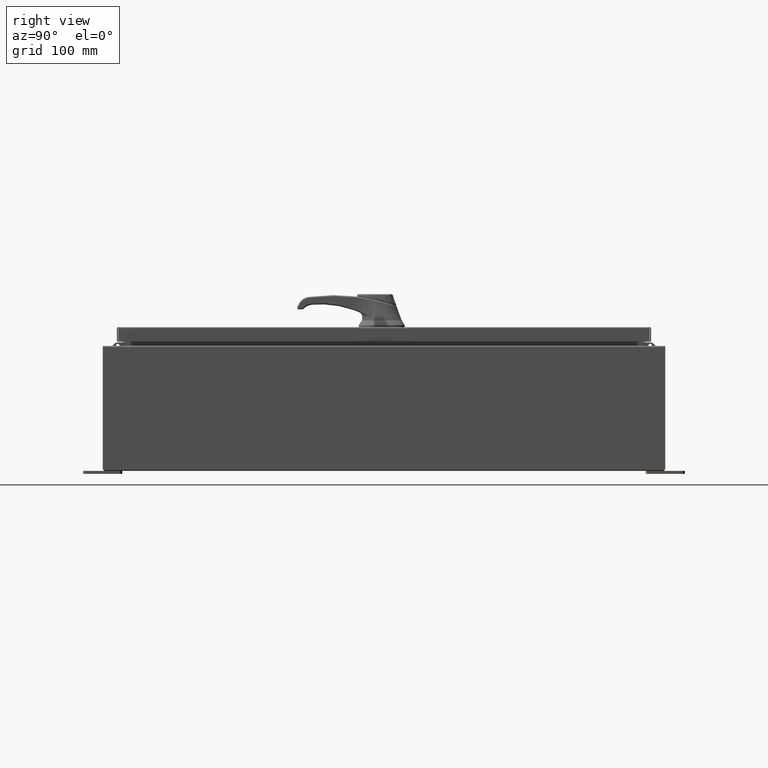
[diagram: clean part render]
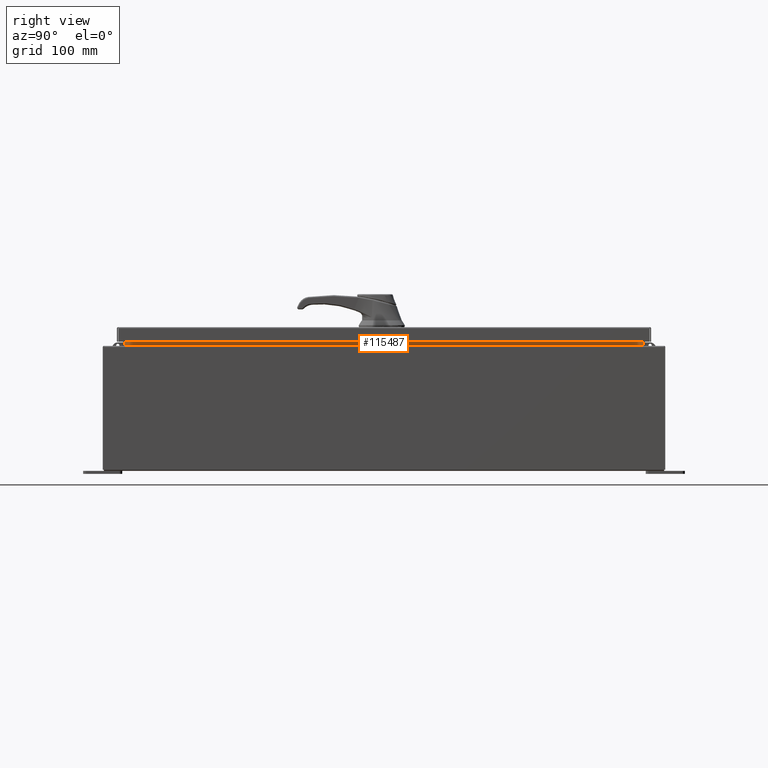
[diagram: same view with one face highlighted and labeled with its STEP entity id]
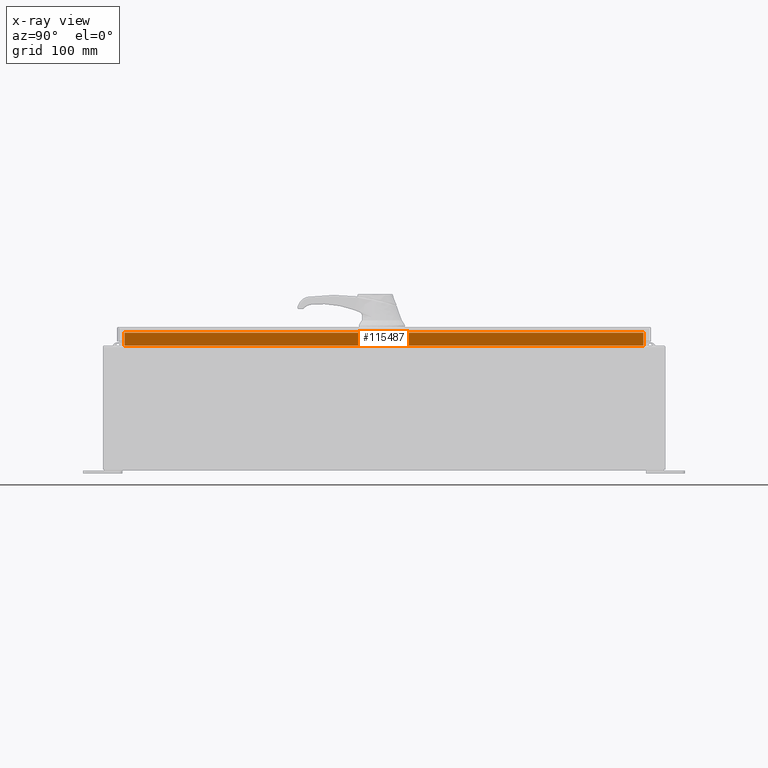
[diagram: x-ray of the same camera — body ghosted, the highlighted face saturated]
A machine part, right view. The second image highlights one B-rep face of the part: STEP entity #115487.
The next image is the same camera in x-ray: the body ghosted, the highlighted face saturated — about 0% of this face is hidden behind the body in this view.
In plain terms, the highlighted planar face has unit normal (1, 0, -0).
Its self-contained STEP definition (entity closure, byte-faithful):
#3660 = ORIENTED_EDGE ( 'NONE', *, *, #97395, .F. ) ;
#8362 = VECTOR ( 'NONE', #17785, 39.37007874015748100 ) ;
#10065 = CARTESIAN_POINT ( 'NONE',  ( 10.69970000000003200, -16.59375000000000000, 8.762900000000007200 ) ) ;
#10385 = VERTEX_POINT ( 'NONE', #99555 ) ;
#10927 = LINE ( 'NONE', #123413, #109076 ) ;
#12779 = EDGE_LOOP ( 'NONE', ( #103333, #89198, #64198, #3660 ) ) ;
#14302 = CARTESIAN_POINT ( 'NONE',  ( 10.69970000000001100, 0.0000000000000000000, -2.527176394925714100E-014 ) ) ;
#15436 = AXIS2_PLACEMENT_3D ( 'NONE', #14302, #100721, #43717 ) ;
#17785 = DIRECTION ( 'NONE',  ( 6.585245634444928200E-017, -1.000000000000000000, 1.975573690333478700E-016 ) ) ;
#19849 = VECTOR ( 'NONE', #123017, 39.37007874015748100 ) ;
#26634 = DIRECTION ( 'NONE',  ( 2.361913319930201500E-015, -0.0000000000000000000, 1.000000000000000000 ) ) ;
#27682 = EDGE_CURVE ( 'NONE', #10385, #108070, #47497, .T. ) ;
#35969 = CARTESIAN_POINT ( 'NONE',  ( 10.69970000000003400, 16.59375000000000000, 8.762900000000007200 ) ) ;
#43717 = DIRECTION ( 'NONE',  ( -2.361913319930196000E-015, 0.0000000000000000000, -1.000000000000000000 ) ) ;
#47497 = LINE ( 'NONE', #74294, #120546 ) ;
#55512 = CARTESIAN_POINT ( 'NONE',  ( 10.69970000000003000, 16.59375000000000000, 7.938300000000007900 ) ) ;
#61944 = EDGE_CURVE ( 'NONE', #110377, #81229, #76214, .T. ) ;
#61988 = EDGE_CURVE ( 'NONE', #108070, #110377, #10927, .T. ) ;
#64198 = ORIENTED_EDGE ( 'NONE', *, *, #27682, .F. ) ;
#65813 = CARTESIAN_POINT ( 'NONE',  ( 10.69970000000003000, 16.59375000000000000, 7.925300000000007100 ) ) ;
#74294 = CARTESIAN_POINT ( 'NONE',  ( 10.69970000000003200, -16.59375000000000000, 8.850600000000007100 ) ) ;
#76214 = LINE ( 'NONE', #65813, #19849 ) ;
#81229 = VERTEX_POINT ( 'NONE', #97951 ) ;
#89198 = ORIENTED_EDGE ( 'NONE', *, *, #61988, .F. ) ;
#95014 = DIRECTION ( 'NONE',  ( 0.0000000000000000000, 1.000000000000000000, 0.0000000000000000000 ) ) ;
#96092 = LINE ( 'NONE', #55512, #8362 ) ;
#97395 = EDGE_CURVE ( 'NONE', #81229, #10385, #96092, .T. ) ;
#97951 = CARTESIAN_POINT ( 'NONE',  ( 10.69970000000003000, 16.59375000000000000, 7.938300000000010600 ) ) ;
#99555 = CARTESIAN_POINT ( 'NONE',  ( 10.69970000000003000, -16.59375000000000000, 7.938300000000010600 ) ) ;
#99879 = PLANE ( 'NONE',  #15436 ) ;
#100721 = DIRECTION ( 'NONE',  ( 1.000000000000000000, 0.0000000000000000000, -2.361913319930196000E-015 ) ) ;
#101931 = FACE_OUTER_BOUND ( 'NONE', #12779, .T. ) ;
#103333 = ORIENTED_EDGE ( 'NONE', *, *, #61944, .F. ) ;
#108070 = VERTEX_POINT ( 'NONE', #10065 ) ;
#109076 = VECTOR ( 'NONE', #95014, 39.37007874015748100 ) ;
#110377 = VERTEX_POINT ( 'NONE', #35969 ) ;
#115487 = ADVANCED_FACE ( 'NONE', ( #101931 ), #99879, .T. ) ;
#120546 = VECTOR ( 'NONE', #26634, 39.37007874015748100 ) ;
#123017 = DIRECTION ( 'NONE',  ( -2.361913319930196000E-015, -0.0000000000000000000, -1.000000000000000000 ) ) ;
#123413 = CARTESIAN_POINT ( 'NONE',  ( 10.69970000000003400, -16.59375000000000000, 8.762900000000007200 ) ) ;